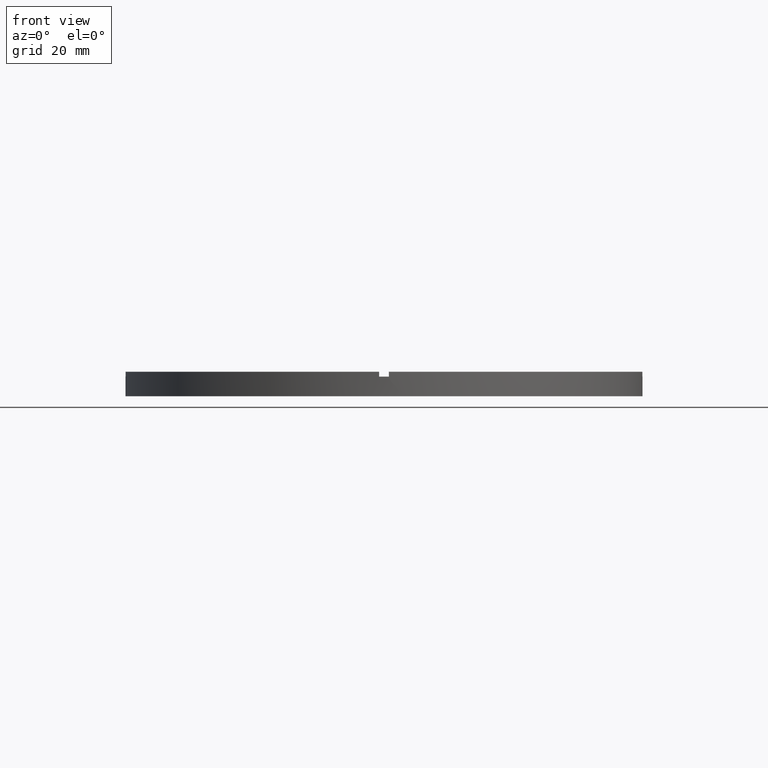
[diagram: clean part render]
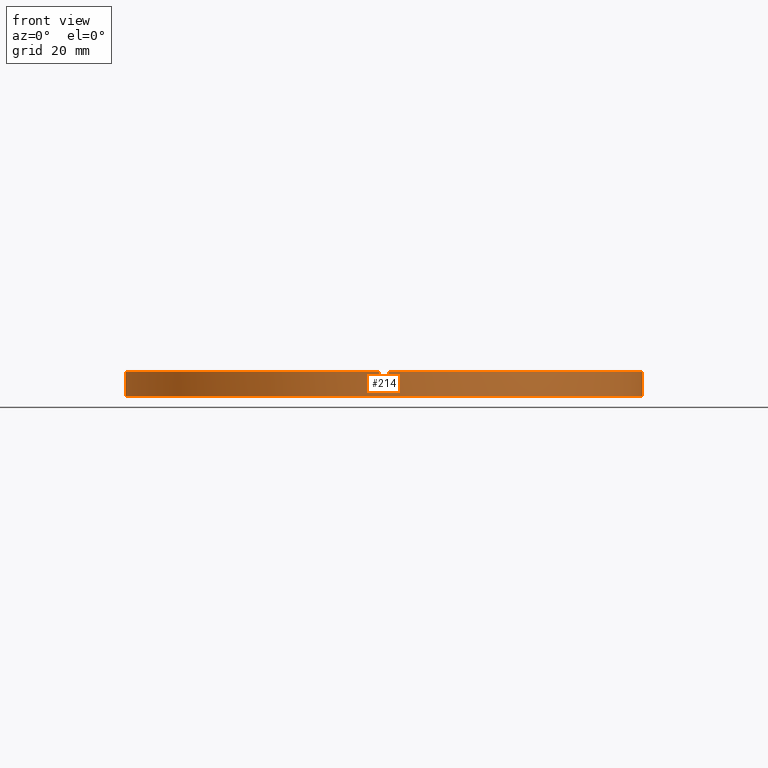
[diagram: same view with one face highlighted and labeled with its STEP entity id]
A machine part, front view. The second image highlights one B-rep face of the part: STEP entity #214.
In plain terms, the highlighted cylindrical surface (partial cylindrical patch) has radius 52.5 mm, axis along (-0, -0, -1).
Its self-contained STEP definition (entity closure, byte-faithful):
#6 = DIRECTION ( 'NONE',  ( 1.000000000000000000, 0.000000000000000000, 0.000000000000000000 ) ) ;
#16 = CARTESIAN_POINT ( 'NONE',  ( -52.50000000000000000, 0.000000000000000000, 4.000000000000000000 ) ) ;
#18 = AXIS2_PLACEMENT_3D ( 'NONE', #747, #505, #217 ) ;
#27 = EDGE_CURVE ( 'NONE', #670, #429, #668, .T. ) ;
#39 = EDGE_CURVE ( 'NONE', #596, #82, #218, .T. ) ;
#41 = CARTESIAN_POINT ( 'NONE',  ( -1.000000000000156319, -52.49047532648184244, 5.000000000000000000 ) ) ;
#46 = CARTESIAN_POINT ( 'NONE',  ( 52.49047532648184244, -1.000000000000154765, 4.000000000000000000 ) ) ;
#48 = CARTESIAN_POINT ( 'NONE',  ( -52.50000000000000000, 0.000000000000000000, 5.000000000000000000 ) ) ;
#58 = EDGE_CURVE ( 'NONE', #722, #400, #736, .T. ) ;
#74 = CARTESIAN_POINT ( 'NONE',  ( -52.49047532648184244, -1.000000000000032196, 5.000000000000000000 ) ) ;
#78 = CARTESIAN_POINT ( 'NONE',  ( 0.000000000000000000, 0.000000000000000000, 4.000000000000000000 ) ) ;
#82 = VERTEX_POINT ( 'NONE', #579 ) ;
#83 = ORIENTED_EDGE ( 'NONE', *, *, #27, .T. ) ;
#94 = ORIENTED_EDGE ( 'NONE', *, *, #231, .T. ) ;
#102 = VERTEX_POINT ( 'NONE', #46 ) ;
#108 = ORIENTED_EDGE ( 'NONE', *, *, #39, .F. ) ;
#113 = VECTOR ( 'NONE', #741, 1000.000000000000000 ) ;
#139 = CIRCLE ( 'NONE', #729, 52.50000000000000000 ) ;
#144 = LINE ( 'NONE', #237, #428 ) ;
#156 = VERTEX_POINT ( 'NONE', #589 ) ;
#158 = VECTOR ( 'NONE', #516, 1000.000000000000000 ) ;
#163 = DIRECTION ( 'NONE',  ( 0.000000000000000000, 0.000000000000000000, 1.000000000000000000 ) ) ;
#188 = ORIENTED_EDGE ( 'NONE', *, *, #304, .F. ) ;
#193 = EDGE_CURVE ( 'NONE', #102, #82, #481, .T. ) ;
#194 = CARTESIAN_POINT ( 'NONE',  ( -52.49047532648184244, -1.000000000000032196, 5.000000000000000000 ) ) ;
#214 = ADVANCED_FACE ( 'NONE', ( #223 ), #731, .T. ) ;
#216 = VECTOR ( 'NONE', #163, 1000.000000000000000 ) ;
#217 = DIRECTION ( 'NONE',  ( 1.000000000000000000, 0.000000000000000000, 0.000000000000000000 ) ) ;
#218 = CIRCLE ( 'NONE', #541, 52.50000000000000000 ) ;
#222 = DIRECTION ( 'NONE',  ( 1.000000000000000000, 0.000000000000000000, 0.000000000000000000 ) ) ;
#223 = FACE_OUTER_BOUND ( 'NONE', #645, .T. ) ;
#227 = CARTESIAN_POINT ( 'NONE',  ( 52.50000000000000000, 6.429395695523603956E-15, 0.000000000000000000 ) ) ;
#231 = EDGE_CURVE ( 'NONE', #596, #156, #486, .T. ) ;
#235 = CARTESIAN_POINT ( 'NONE',  ( 0.9999999999998436806, -52.49047532648184955, 5.000000000000000000 ) ) ;
#237 = CARTESIAN_POINT ( 'NONE',  ( 52.50000000000000000, 6.429395695523603956E-15, 5.000000000000000000 ) ) ;
#244 = CARTESIAN_POINT ( 'NONE',  ( 0.000000000000000000, 0.000000000000000000, 5.000000000000000000 ) ) ;
#251 = AXIS2_PLACEMENT_3D ( 'NONE', #478, #679, #222 ) ;
#260 = DIRECTION ( 'NONE',  ( -0.000000000000000000, -0.000000000000000000, -1.000000000000000000 ) ) ;
#269 = EDGE_CURVE ( 'NONE', #723, #374, #382, .T. ) ;
#281 = CARTESIAN_POINT ( 'NONE',  ( 52.49047532648184244, -1.000000000000154765, 5.000000000000000000 ) ) ;
#287 = CARTESIAN_POINT ( 'NONE',  ( -52.49047532648184244, -1.000000000000032196, 4.000000000000000000 ) ) ;
#302 = DIRECTION ( 'NONE',  ( 1.000000000000000000, 0.000000000000000000, 0.000000000000000000 ) ) ;
#304 = EDGE_CURVE ( 'NONE', #597, #374, #412, .T. ) ;
#312 = CARTESIAN_POINT ( 'NONE',  ( -1.000000000000156319, -52.49047532648184244, 5.000000000000000000 ) ) ;
#348 = ORIENTED_EDGE ( 'NONE', *, *, #269, .T. ) ;
#370 = CARTESIAN_POINT ( 'NONE',  ( 0.000000000000000000, 0.000000000000000000, 5.000000000000000000 ) ) ;
#374 = VERTEX_POINT ( 'NONE', #287 ) ;
#376 = DIRECTION ( 'NONE',  ( 1.000000000000000000, 0.000000000000000000, 0.000000000000000000 ) ) ;
#382 = LINE ( 'NONE', #74, #113 ) ;
#388 = ORIENTED_EDGE ( 'NONE', *, *, #193, .T. ) ;
#400 = VERTEX_POINT ( 'NONE', #227 ) ;
#402 = CIRCLE ( 'NONE', #439, 52.50000000000000000 ) ;
#403 = VERTEX_POINT ( 'NONE', #453 ) ;
#412 = CIRCLE ( 'NONE', #251, 52.50000000000000000 ) ;
#416 = DIRECTION ( 'NONE',  ( 0.000000000000000000, 0.000000000000000000, 1.000000000000000000 ) ) ;
#422 = LINE ( 'NONE', #48, #652 ) ;
#426 = EDGE_CURVE ( 'NONE', #670, #156, #139, .T. ) ;
#428 = VECTOR ( 'NONE', #761, 1000.000000000000000 ) ;
#429 = VERTEX_POINT ( 'NONE', #41 ) ;
#430 = CARTESIAN_POINT ( 'NONE',  ( -1.000000000000156319, -52.49047532648184244, 4.000000000000000000 ) ) ;
#439 = AXIS2_PLACEMENT_3D ( 'NONE', #691, #484, #302 ) ;
#446 = ORIENTED_EDGE ( 'NONE', *, *, #566, .T. ) ;
#453 = CARTESIAN_POINT ( 'NONE',  ( 52.50000000000000000, 6.429395695523603956E-15, 4.000000000000000000 ) ) ;
#460 = ORIENTED_EDGE ( 'NONE', *, *, #715, .F. ) ;
#467 = CIRCLE ( 'NONE', #551, 52.50000000000000000 ) ;
#478 = CARTESIAN_POINT ( 'NONE',  ( 0.000000000000000000, 0.000000000000000000, 4.000000000000000000 ) ) ;
#481 = LINE ( 'NONE', #281, #216 ) ;
#484 = DIRECTION ( 'NONE',  ( 0.000000000000000000, 0.000000000000000000, 1.000000000000000000 ) ) ;
#486 = LINE ( 'NONE', #548, #488 ) ;
#488 = VECTOR ( 'NONE', #613, 1000.000000000000000 ) ;
#503 = CARTESIAN_POINT ( 'NONE',  ( 0.000000000000000000, 0.000000000000000000, 4.000000000000000000 ) ) ;
#505 = DIRECTION ( 'NONE',  ( 0.000000000000000000, 0.000000000000000000, 1.000000000000000000 ) ) ;
#515 = DIRECTION ( 'NONE',  ( -0.000000000000000000, -0.000000000000000000, -1.000000000000000000 ) ) ;
#516 = DIRECTION ( 'NONE',  ( 0.000000000000000000, 0.000000000000000000, 1.000000000000000000 ) ) ;
#522 = EDGE_CURVE ( 'NONE', #723, #429, #402, .T. ) ;
#535 = DIRECTION ( 'NONE',  ( -0.000000000000000000, 0.000000000000000000, 1.000000000000000000 ) ) ;
#541 = AXIS2_PLACEMENT_3D ( 'NONE', #244, #416, #584 ) ;
#548 = CARTESIAN_POINT ( 'NONE',  ( 0.9999999999998436806, -52.49047532648184955, 5.000000000000000000 ) ) ;
#551 = AXIS2_PLACEMENT_3D ( 'NONE', #78, #762, #376 ) ;
#553 = DIRECTION ( 'NONE',  ( -1.000000000000000000, 0.000000000000000000, 0.000000000000000000 ) ) ;
#566 = EDGE_CURVE ( 'NONE', #597, #722, #422, .T. ) ;
#579 = CARTESIAN_POINT ( 'NONE',  ( 52.49047532648184244, -1.000000000000154765, 5.000000000000000000 ) ) ;
#584 = DIRECTION ( 'NONE',  ( 1.000000000000000000, 0.000000000000000000, 0.000000000000000000 ) ) ;
#589 = CARTESIAN_POINT ( 'NONE',  ( 0.9999999999998436806, -52.49047532648184955, 4.000000000000000000 ) ) ;
#590 = EDGE_CURVE ( 'NONE', #403, #400, #144, .T. ) ;
#596 = VERTEX_POINT ( 'NONE', #235 ) ;
#597 = VERTEX_POINT ( 'NONE', #16 ) ;
#609 = ORIENTED_EDGE ( 'NONE', *, *, #522, .F. ) ;
#613 = DIRECTION ( 'NONE',  ( -0.000000000000000000, -0.000000000000000000, -1.000000000000000000 ) ) ;
#637 = ORIENTED_EDGE ( 'NONE', *, *, #590, .F. ) ;
#645 = EDGE_LOOP ( 'NONE', ( #637, #460, #388, #108, #94, #725, #83, #609, #348, #188, #446, #700 ) ) ;
#652 = VECTOR ( 'NONE', #260, 1000.000000000000000 ) ;
#668 = LINE ( 'NONE', #312, #158 ) ;
#670 = VERTEX_POINT ( 'NONE', #430 ) ;
#679 = DIRECTION ( 'NONE',  ( 0.000000000000000000, 0.000000000000000000, 1.000000000000000000 ) ) ;
#691 = CARTESIAN_POINT ( 'NONE',  ( 0.000000000000000000, 0.000000000000000000, 5.000000000000000000 ) ) ;
#700 = ORIENTED_EDGE ( 'NONE', *, *, #58, .T. ) ;
#715 = EDGE_CURVE ( 'NONE', #102, #403, #467, .T. ) ;
#722 = VERTEX_POINT ( 'NONE', #770 ) ;
#723 = VERTEX_POINT ( 'NONE', #194 ) ;
#725 = ORIENTED_EDGE ( 'NONE', *, *, #426, .F. ) ;
#729 = AXIS2_PLACEMENT_3D ( 'NONE', #503, #535, #6 ) ;
#731 = CYLINDRICAL_SURFACE ( 'NONE', #777, 52.50000000000000000 ) ;
#736 = CIRCLE ( 'NONE', #18, 52.50000000000000000 ) ;
#741 = DIRECTION ( 'NONE',  ( -0.000000000000000000, -0.000000000000000000, -1.000000000000000000 ) ) ;
#747 = CARTESIAN_POINT ( 'NONE',  ( 0.000000000000000000, 0.000000000000000000, 0.000000000000000000 ) ) ;
#761 = DIRECTION ( 'NONE',  ( -0.000000000000000000, -0.000000000000000000, -1.000000000000000000 ) ) ;
#762 = DIRECTION ( 'NONE',  ( 0.000000000000000000, 0.000000000000000000, 1.000000000000000000 ) ) ;
#770 = CARTESIAN_POINT ( 'NONE',  ( -52.50000000000000000, 0.000000000000000000, 0.000000000000000000 ) ) ;
#777 = AXIS2_PLACEMENT_3D ( 'NONE', #370, #515, #553 ) ;